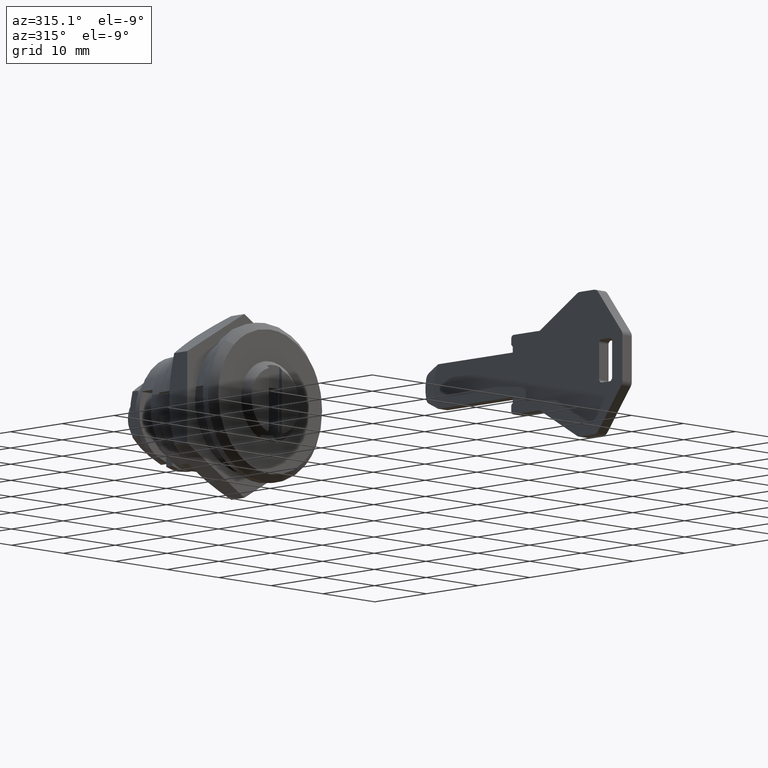
[diagram: clean part render]
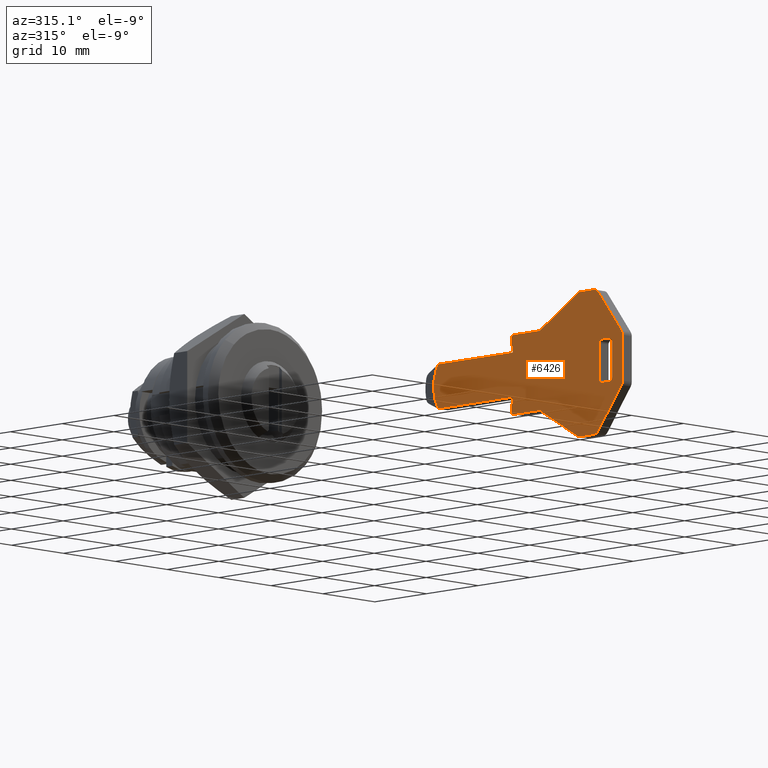
[diagram: same view with one face highlighted and labeled with its STEP entity id]
A machine part, auxiliary view. The second image highlights one B-rep face of the part: STEP entity #6426.
In plain terms, the highlighted face is a freeform B-spline surface patch.
Its self-contained STEP definition (entity closure, byte-faithful):
#6012=CARTESIAN_POINT('',(-33.377038325660592,0.899996709018056,1.350000000000000));
#6013=VERTEX_POINT('',#6012);
#6034=CARTESIAN_POINT('',(-33.377038325660649,0.899996709018053,-4.800000000000080));
#6035=VERTEX_POINT('',#6034);
#6125=CARTESIAN_POINT('',(-33.377038325660649,0.899996709018053,-4.800000000000080));
#6126=CARTESIAN_POINT('',(-33.152906285406068,0.899996709018054,-4.424616922456002));
#6127=CARTESIAN_POINT('',(-32.829506566871522,0.899996709018052,-3.716870572396846));
#6128=CARTESIAN_POINT('',(-32.538190007197350,0.899996709018054,-2.502577497537765));
#6129=CARTESIAN_POINT('',(-32.494807317380328,0.899996709018058,-1.216457287095673));
#6130=CARTESIAN_POINT('',(-32.773217067089277,0.899996709018047,0.143797104055706));
#6131=CARTESIAN_POINT('',(-33.152907588685963,0.899996709018066,0.974615492622894));
#6132=CARTESIAN_POINT('',(-33.377038325660592,0.899996709018056,1.350000000000000));
#6133=B_SPLINE_CURVE_WITH_KNOTS('',3,(#6125,#6126,#6127,#6128,#6129,#6130,#6131,#6132),.UNSPECIFIED.,.F.,.U.,(4,1,1,1,1,4),(0.000000040810688,1.311612525735175,2.320563323781189,3.733041168151737,5.145580433383238,6.457193163281999),.UNSPECIFIED.);
#6134=EDGE_CURVE('',#6035,#6013,#6133,.T.);
#6141=CARTESIAN_POINT('',(-70.852373160092981,0.900000000000000,9.273999585744747));
#6142=CARTESIAN_POINT('',(-30.706010978148331,0.900000000000000,9.273999585744747));
#6143=CARTESIAN_POINT('',(-70.852373160092981,0.900000000000000,-12.724000479814579));
#6144=CARTESIAN_POINT('',(-30.706010978148331,0.900000000000000,-12.724000479814579));
#6145=B_SPLINE_SURFACE_WITH_KNOTS('',1,1,((#6141,#6143),(#6142,#6144)),.UNSPECIFIED.,.F.,.F.,.U.,(2,2),(2,2),(0.0,40.146362181944653),(0.0,21.998000065559321),.UNSPECIFIED.);
#6146=CARTESIAN_POINT('',(-47.829200000000000,0.900000000000012,1.350000000000000));
#6147=VERTEX_POINT('',#6146);
#6148=CARTESIAN_POINT('',(-33.377038325660592,0.899996709018056,1.350000000000000));
#6149=CARTESIAN_POINT('',(-47.829200000000000,0.900000000000012,1.350000000000000));
#6150=QUASI_UNIFORM_CURVE('',1,(#6148,#6149),.UNSPECIFIED.,.F.,.U.);
#6151=EDGE_CURVE('',#6013,#6147,#6150,.T.);
#6152=ORIENTED_EDGE('',*,*,#6151,.F.);
#6153=ORIENTED_EDGE('',*,*,#6134,.F.);
#6154=CARTESIAN_POINT('',(-47.829200000000000,0.900000000000012,-4.800000000000080));
#6155=VERTEX_POINT('',#6154);
#6156=CARTESIAN_POINT('',(-47.829200000000000,0.900000000000012,-4.800000000000080));
#6157=CARTESIAN_POINT('',(-33.377038325660649,0.899996709018053,-4.800000000000080));
#6158=QUASI_UNIFORM_CURVE('',1,(#6156,#6157),.UNSPECIFIED.,.F.,.U.);
#6159=EDGE_CURVE('',#6155,#6035,#6158,.T.);
#6160=ORIENTED_EDGE('',*,*,#6159,.F.);
#6161=CARTESIAN_POINT('',(-47.829200000000000,0.900000000000012,-5.600000000000000));
#6162=VERTEX_POINT('',#6161);
#6163=CARTESIAN_POINT('',(-47.829200000000000,0.900000000000012,-5.600000000000000));
#6164=CARTESIAN_POINT('',(-47.829200000000000,0.900000000000012,-4.800000000000080));
#6165=QUASI_UNIFORM_CURVE('',1,(#6163,#6164),.UNSPECIFIED.,.F.,.U.);
#6166=EDGE_CURVE('',#6162,#6155,#6165,.T.);
#6167=ORIENTED_EDGE('',*,*,#6166,.F.);
#6168=CARTESIAN_POINT('',(-47.529200000000003,0.900000000000012,-5.900000000000000));
#6169=VERTEX_POINT('',#6168);
#6170=CARTESIAN_POINT('',(-47.529200000000003,0.900000000000012,-5.900000000000000));
#6171=CARTESIAN_POINT('',(-47.829200000000000,0.900000000000012,-5.600000000000000));
#6172=QUASI_UNIFORM_CURVE('',1,(#6170,#6171),.UNSPECIFIED.,.F.,.U.);
#6173=EDGE_CURVE('',#6169,#6162,#6172,.T.);
#6174=ORIENTED_EDGE('',*,*,#6173,.F.);
#6175=CARTESIAN_POINT('',(-47.529200000000003,0.900000000000012,-6.725000000000000));
#6176=VERTEX_POINT('',#6175);
#6177=CARTESIAN_POINT('',(-47.529200000000003,0.900000000000012,-6.725000000000000));
#6178=CARTESIAN_POINT('',(-47.529200000000003,0.900000000000012,-5.900000000000000));
#6179=QUASI_UNIFORM_CURVE('',1,(#6177,#6178),.UNSPECIFIED.,.F.,.U.);
#6180=EDGE_CURVE('',#6176,#6169,#6179,.T.);
#6181=ORIENTED_EDGE('',*,*,#6180,.F.);
#6182=CARTESIAN_POINT('',(-48.029200000000003,0.900000000000012,-7.225000000000000));
#6183=VERTEX_POINT('',#6182);
#6184=CARTESIAN_POINT('',(-48.029200000000003,0.900000000000012,-7.225000000000000));
#6185=CARTESIAN_POINT('',(-47.947348378245202,0.900000000000013,-7.225159022870324));
#6186=CARTESIAN_POINT('',(-47.824802085753468,0.900000000000011,-7.194195560144747));
#6187=CARTESIAN_POINT('',(-47.669769607722429,0.900000000000013,-7.084990774377641));
#6188=CARTESIAN_POINT('',(-47.560490324399822,0.900000000000011,-6.937634895600256));
#6189=CARTESIAN_POINT('',(-47.529087500856960,0.900000000000014,-6.798652743611017));
#6190=CARTESIAN_POINT('',(-47.529200000000003,0.900000000000012,-6.725000000000000));
#6191=B_SPLINE_CURVE_WITH_KNOTS('',3,(#6184,#6185,#6186,#6187,#6188,#6189,#6190),.UNSPECIFIED.,.F.,.U.,(4,1,1,1,4),(0.000000378756345,0.245466615867873,0.368210764460239,0.564556063267420,0.785476941727156),.UNSPECIFIED.);
#6192=EDGE_CURVE('',#6183,#6176,#6191,.T.);
#6193=ORIENTED_EDGE('',*,*,#6192,.F.);
#6194=CARTESIAN_POINT('',(-53.029200000000003,0.900000000000012,-7.225000000000000));
#6195=VERTEX_POINT('',#6194);
#6196=CARTESIAN_POINT('',(-53.029200000000003,0.900000000000012,-7.225000000000000));
#6197=CARTESIAN_POINT('',(-48.029200000000003,0.900000000000012,-7.225000000000000));
#6198=QUASI_UNIFORM_CURVE('',1,(#6196,#6197),.UNSPECIFIED.,.F.,.U.);
#6199=EDGE_CURVE('',#6195,#6183,#6198,.T.);
#6200=ORIENTED_EDGE('',*,*,#6199,.F.);
#6201=CARTESIAN_POINT('',(-60.291699955738203,0.900000000000012,-11.582999973439920));
#6202=VERTEX_POINT('',#6201);
#6203=CARTESIAN_POINT('',(-60.291699955738203,0.900000000000012,-11.582999973439920));
#6204=CARTESIAN_POINT('',(-53.029200000000003,0.900000000000012,-7.225000000000000));
#6205=QUASI_UNIFORM_CURVE('',1,(#6203,#6204),.UNSPECIFIED.,.F.,.U.);
#6206=EDGE_CURVE('',#6202,#6195,#6205,.T.);
#6207=ORIENTED_EDGE('',*,*,#6206,.F.);
#6208=CARTESIAN_POINT('',(-60.806100000000001,0.900000000000012,-11.725000000000000));
#6209=VERTEX_POINT('',#6208);
#6210=CARTESIAN_POINT('',(-60.806100000000001,0.900000000000012,-11.725000000000000));
#6211=CARTESIAN_POINT('',(-60.625941345514960,0.900000000000013,-11.725661369077320));
#6212=CARTESIAN_POINT('',(-60.446036689451340,0.900000000000012,-11.675887335064850));
#6213=CARTESIAN_POINT('',(-60.291699955738203,0.900000000000012,-11.582999973439920));
#6214=B_SPLINE_CURVE_WITH_KNOTS('',3,(#6210,#6211,#6212,#6213),.UNSPECIFIED.,.F.,.U.,(4,4),(0.000000044724348,0.540260153120440),.UNSPECIFIED.);
#6215=EDGE_CURVE('',#6209,#6202,#6214,.T.);
#6216=ORIENTED_EDGE('',*,*,#6215,.F.);
#6217=CARTESIAN_POINT('',(-63.536800000000007,0.900000000000012,-11.725000000000160));
#6218=VERTEX_POINT('',#6217);
#6219=CARTESIAN_POINT('',(-63.536800000000007,0.900000000000012,-11.725000000000160));
#6220=CARTESIAN_POINT('',(-60.806100000000001,0.900000000000012,-11.725000000000000));
#6221=QUASI_UNIFORM_CURVE('',1,(#6219,#6220),.UNSPECIFIED.,.F.,.U.);
#6222=EDGE_CURVE('',#6218,#6209,#6221,.T.);
#6223=ORIENTED_EDGE('',*,*,#6222,.F.);
#6224=CARTESIAN_POINT('',(-64.329400009085390,0.900000000000012,-11.334999988189161));
#6225=VERTEX_POINT('',#6224);
#6226=CARTESIAN_POINT('',(-64.329400009085390,0.900000000000012,-11.334999988189161));
#6227=CARTESIAN_POINT('',(-64.230817014421135,0.900000000000013,-11.463644188985180));
#6228=CARTESIAN_POINT('',(-63.984670356665767,0.900000000000011,-11.658652239598030));
#6229=CARTESIAN_POINT('',(-63.679800325578121,0.900000000000012,-11.725266643935900));
#6230=CARTESIAN_POINT('',(-63.536800000000007,0.900000000000012,-11.725000000000160));
#6231=B_SPLINE_CURVE_WITH_KNOTS('',3,(#6226,#6227,#6228,#6229,#6230),.UNSPECIFIED.,.F.,.U.,(4,1,4),(0.000000120061901,0.486077434635108,0.915015808070729),.UNSPECIFIED.);
#6232=EDGE_CURVE('',#6225,#6218,#6231,.T.);
#6233=ORIENTED_EDGE('',*,*,#6232,.F.);
#6234=CARTESIAN_POINT('',(-68.821799999999996,0.900000000000012,-5.495000000000080));
#6235=VERTEX_POINT('',#6234);
#6236=CARTESIAN_POINT('',(-68.821799999999996,0.900000000000012,-5.495000000000080));
#6237=CARTESIAN_POINT('',(-64.329400009085390,0.900000000000012,-11.334999988189161));
#6238=QUASI_UNIFORM_CURVE('',1,(#6236,#6237),.UNSPECIFIED.,.F.,.U.);
#6239=EDGE_CURVE('',#6235,#6225,#6238,.T.);
#6240=ORIENTED_EDGE('',*,*,#6239,.F.);
#6241=CARTESIAN_POINT('',(-69.029200000000003,0.900000000000012,-4.885000000000090));
#6242=VERTEX_POINT('',#6241);
#6243=CARTESIAN_POINT('',(-69.029200000000003,0.900000000000012,-4.885000000000090));
#6244=CARTESIAN_POINT('',(-69.029344328384838,0.900000000000013,-5.008017425576838));
#6245=CARTESIAN_POINT('',(-68.988376903731421,0.900000000000010,-5.226591401505659));
#6246=CARTESIAN_POINT('',(-68.880162636342604,0.900000000000014,-5.419192868605842));
#6247=CARTESIAN_POINT('',(-68.821799999999996,0.900000000000012,-5.495000000000080));
#6248=B_SPLINE_CURVE_WITH_KNOTS('',3,(#6243,#6244,#6245,#6246,#6247),.UNSPECIFIED.,.F.,.U.,(4,1,4),(0.000000034420036,0.369020570195113,0.656036812134061),.UNSPECIFIED.);
#6249=EDGE_CURVE('',#6242,#6235,#6248,.T.);
#6250=ORIENTED_EDGE('',*,*,#6249,.F.);
#6251=CARTESIAN_POINT('',(-69.029200000000003,0.900000000000012,1.435000000000016));
#6252=VERTEX_POINT('',#6251);
#6253=CARTESIAN_POINT('',(-69.029200000000003,0.900000000000012,1.435000000000016));
#6254=CARTESIAN_POINT('',(-69.029200000000003,0.900000000000012,-4.885000000000090));
#6255=QUASI_UNIFORM_CURVE('',1,(#6253,#6254),.UNSPECIFIED.,.F.,.U.);
#6256=EDGE_CURVE('',#6252,#6242,#6255,.T.);
#6257=ORIENTED_EDGE('',*,*,#6256,.F.);
#6258=CARTESIAN_POINT('',(-68.839844749133903,0.900000000000012,2.020538291405075));
#6259=VERTEX_POINT('',#6258);
#6260=CARTESIAN_POINT('',(-68.839844749133903,0.900000000000012,2.020538291405075));
#6261=CARTESIAN_POINT('',(-68.908603222968637,0.900000000000013,1.925505307822197));
#6262=CARTESIAN_POINT('',(-69.000470886050209,0.900000000000010,1.734727633931907));
#6263=CARTESIAN_POINT('',(-69.029227402619497,0.900000000000013,1.526229735561985));
#6264=CARTESIAN_POINT('',(-69.029200000000003,0.900000000000012,1.435000000000016));
#6265=B_SPLINE_CURVE_WITH_KNOTS('',3,(#6260,#6261,#6262,#6263,#6264),.UNSPECIFIED.,.F.,.U.,(4,1,4),(0.000000054737451,0.351883973345525,0.625583741767919),.UNSPECIFIED.);
#6266=EDGE_CURVE('',#6259,#6252,#6265,.T.);
#6267=ORIENTED_EDGE('',*,*,#6266,.F.);
#6268=CARTESIAN_POINT('',(-64.329400047204601,0.900000000000012,7.884999938624711));
#6269=VERTEX_POINT('',#6268);
#6270=CARTESIAN_POINT('',(-64.329400047204601,0.900000000000012,7.884999938624711));
#6271=CARTESIAN_POINT('',(-68.839844749133903,0.900000000000012,2.020538291405075));
#6272=QUASI_UNIFORM_CURVE('',1,(#6270,#6271),.UNSPECIFIED.,.F.,.U.);
#6273=EDGE_CURVE('',#6269,#6259,#6272,.T.);
#6274=ORIENTED_EDGE('',*,*,#6273,.F.);
#6275=CARTESIAN_POINT('',(-63.536800000000007,0.900000000000012,8.274999999999999));
#6276=VERTEX_POINT('',#6275);
#6277=CARTESIAN_POINT('',(-63.536800000000007,0.900000000000012,8.274999999999999));
#6278=CARTESIAN_POINT('',(-63.670252051023077,0.900000000000012,8.275218665045104));
#6279=CARTESIAN_POINT('',(-63.975206675919772,0.900000000000012,8.213265140419839));
#6280=CARTESIAN_POINT('',(-64.225077251292134,0.900000000000013,8.021310965326384));
#6281=CARTESIAN_POINT('',(-64.329400047204601,0.900000000000012,7.884999938624711));
#6282=B_SPLINE_CURVE_WITH_KNOTS('',3,(#6277,#6278,#6279,#6280,#6281),.UNSPECIFIED.,.F.,.U.,(4,1,4),(0.000000120151753,0.400341080771767,0.915027601937548),.UNSPECIFIED.);
#6283=EDGE_CURVE('',#6276,#6269,#6282,.T.);
#6284=ORIENTED_EDGE('',*,*,#6283,.F.);
#6285=CARTESIAN_POINT('',(-60.806100000000001,0.900000000000012,8.274999999999999));
#6286=VERTEX_POINT('',#6285);
#6287=CARTESIAN_POINT('',(-60.806100000000001,0.900000000000012,8.274999999999999));
#6288=CARTESIAN_POINT('',(-63.536800000000007,0.900000000000012,8.274999999999999));
#6289=QUASI_UNIFORM_CURVE('',1,(#6287,#6288),.UNSPECIFIED.,.F.,.U.);
#6290=EDGE_CURVE('',#6286,#6276,#6289,.T.);
#6291=ORIENTED_EDGE('',*,*,#6290,.F.);
#6292=CARTESIAN_POINT('',(-60.265547876998099,0.900000000000012,8.116310526689340));
#6293=VERTEX_POINT('',#6292);
#6294=CARTESIAN_POINT('',(-60.265547876998099,0.900000000000012,8.116310526689340));
#6295=CARTESIAN_POINT('',(-60.425569254137500,0.900000000000012,8.219621950942406));
#6296=CARTESIAN_POINT('',(-60.615662822163422,0.900000000000012,8.275291947905297));
#6297=CARTESIAN_POINT('',(-60.806100000000001,0.900000000000012,8.274999999999999));
#6298=B_SPLINE_CURVE_WITH_KNOTS('',3,(#6294,#6295,#6296,#6297),.UNSPECIFIED.,.F.,.U.,(4,4),(0.000000034768193,0.571123536007726),.UNSPECIFIED.);
#6299=EDGE_CURVE('',#6293,#6286,#6298,.T.);
#6300=ORIENTED_EDGE('',*,*,#6299,.F.);
#6301=CARTESIAN_POINT('',(-53.029200000000003,0.900000000000012,3.775000000000000));
#6302=VERTEX_POINT('',#6301);
#6303=CARTESIAN_POINT('',(-53.029200000000003,0.900000000000012,3.775000000000000));
#6304=CARTESIAN_POINT('',(-60.265547876998099,0.900000000000012,8.116310526689340));
#6305=QUASI_UNIFORM_CURVE('',1,(#6303,#6304),.UNSPECIFIED.,.F.,.U.);
#6306=EDGE_CURVE('',#6302,#6293,#6305,.T.);
#6307=ORIENTED_EDGE('',*,*,#6306,.F.);
#6308=CARTESIAN_POINT('',(-48.029200000000003,0.900000000000012,3.775000000000000));
#6309=VERTEX_POINT('',#6308);
#6310=CARTESIAN_POINT('',(-48.029200000000003,0.900000000000012,3.775000000000000));
#6311=CARTESIAN_POINT('',(-53.029200000000003,0.900000000000012,3.775000000000000));
#6312=QUASI_UNIFORM_CURVE('',1,(#6310,#6311),.UNSPECIFIED.,.F.,.U.);
#6313=EDGE_CURVE('',#6309,#6302,#6312,.T.);
#6314=ORIENTED_EDGE('',*,*,#6313,.F.);
#6315=CARTESIAN_POINT('',(-47.529200000000003,0.900000000000012,3.275000000000000));
#6316=VERTEX_POINT('',#6315);
#6317=CARTESIAN_POINT('',(-47.529200000000003,0.900000000000012,3.275000000000000));
#6318=CARTESIAN_POINT('',(-47.529043584060737,0.900000000000012,3.356849959860222));
#6319=CARTESIAN_POINT('',(-47.560001471217163,0.900000000000012,3.479398876038724));
#6320=CARTESIAN_POINT('',(-47.669210471618470,0.900000000000012,3.634430003952036));
#6321=CARTESIAN_POINT('',(-47.816564684132643,0.900000000000012,3.743709806676057));
#6322=CARTESIAN_POINT('',(-47.955547327944458,0.900000000000014,3.775112477421635));
#6323=CARTESIAN_POINT('',(-48.029200000000003,0.900000000000012,3.775000000000000));
#6324=B_SPLINE_CURVE_WITH_KNOTS('',3,(#6317,#6318,#6319,#6320,#6321,#6322,#6323),.UNSPECIFIED.,.F.,.U.,(4,1,1,1,4),(0.000000378754695,0.245466615866304,0.368210764458864,0.564556063266685,0.785476941727197),.UNSPECIFIED.);
#6325=EDGE_CURVE('',#6316,#6309,#6324,.T.);
#6326=ORIENTED_EDGE('',*,*,#6325,.F.);
#6327=CARTESIAN_POINT('',(-47.529200000000003,0.900000000000012,2.450000000000000));
#6328=VERTEX_POINT('',#6327);
#6329=CARTESIAN_POINT('',(-47.529200000000003,0.900000000000012,2.450000000000000));
#6330=CARTESIAN_POINT('',(-47.529200000000003,0.900000000000012,3.275000000000000));
#6331=QUASI_UNIFORM_CURVE('',1,(#6329,#6330),.UNSPECIFIED.,.F.,.U.);
#6332=EDGE_CURVE('',#6328,#6316,#6331,.T.);
#6333=ORIENTED_EDGE('',*,*,#6332,.F.);
#6334=CARTESIAN_POINT('',(-47.829200000000000,0.900000000000012,2.150000000000000));
#6335=VERTEX_POINT('',#6334);
#6336=CARTESIAN_POINT('',(-47.829200000000000,0.900000000000012,2.150000000000000));
#6337=CARTESIAN_POINT('',(-47.529200000000003,0.900000000000012,2.450000000000000));
#6338=QUASI_UNIFORM_CURVE('',1,(#6336,#6337),.UNSPECIFIED.,.F.,.U.);
#6339=EDGE_CURVE('',#6335,#6328,#6338,.T.);
#6340=ORIENTED_EDGE('',*,*,#6339,.F.);
#6341=CARTESIAN_POINT('',(-47.829200000000000,0.900000000000012,1.350000000000000));
#6342=CARTESIAN_POINT('',(-47.829200000000000,0.900000000000012,2.150000000000000));
#6343=QUASI_UNIFORM_CURVE('',1,(#6341,#6342),.UNSPECIFIED.,.F.,.U.);
#6344=EDGE_CURVE('',#6147,#6335,#6343,.T.);
#6345=ORIENTED_EDGE('',*,*,#6344,.F.);
#6346=EDGE_LOOP('',(#6152,#6153,#6160,#6167,#6174,#6181,#6193,#6200,#6207,#6216,#6223,#6233,#6240,#6250,#6257,#6267,#6274,#6284,#6291,#6300,#6307,#6314,#6326,#6333,#6340,#6345));
#6347=FACE_OUTER_BOUND('',#6346,.T.);
#6348=CARTESIAN_POINT('',(-64.529199999999989,0.900000000000012,0.775000000000020));
#6349=VERTEX_POINT('',#6348);
#6350=CARTESIAN_POINT('',(-65.029199999999989,0.900000000000012,1.275000000000020));
#6351=VERTEX_POINT('',#6350);
#6352=CARTESIAN_POINT('',(-64.529199999999989,0.900000000000012,0.775000000000020));
#6353=CARTESIAN_POINT('',(-64.529040551449384,0.900000000000012,0.856851753201348));
#6354=CARTESIAN_POINT('',(-64.560004130086526,0.900000000000012,0.979400240704490));
#6355=CARTESIAN_POINT('',(-64.659743615419856,0.900000000000012,1.120908488291919));
#6356=CARTESIAN_POINT('',(-64.800354062808211,0.900000000000013,1.236395001889831));
#6357=CARTESIAN_POINT('',(-64.939136865681647,0.900000000000012,1.275266826704393));
#6358=CARTESIAN_POINT('',(-65.029199999999989,0.900000000000012,1.275000000000020));
#6359=B_SPLINE_CURVE_WITH_KNOTS('',3,(#6352,#6353,#6354,#6355,#6356,#6357,#6358),.UNSPECIFIED.,.F.,.U.,(4,1,1,1,4),(0.000000378752525,0.245466615865067,0.368210764458137,0.515464349929587,0.785476941727202),.UNSPECIFIED.);
#6360=EDGE_CURVE('',#6349,#6351,#6359,.T.);
#6361=ORIENTED_EDGE('',*,*,#6360,.T.);
#6362=CARTESIAN_POINT('',(-66.529200000000003,0.900000000000012,1.275000000000020));
#6363=VERTEX_POINT('',#6362);
#6364=CARTESIAN_POINT('',(-65.029199999999989,0.900000000000012,1.275000000000020));
#6365=CARTESIAN_POINT('',(-66.529200000000003,0.900000000000012,1.275000000000020));
#6366=QUASI_UNIFORM_CURVE('',1,(#6364,#6365),.UNSPECIFIED.,.F.,.U.);
#6367=EDGE_CURVE('',#6351,#6363,#6366,.T.);
#6368=ORIENTED_EDGE('',*,*,#6367,.T.);
#6369=CARTESIAN_POINT('',(-67.029200000000003,0.900000000000012,0.775000000000020));
#6370=VERTEX_POINT('',#6369);
#6371=CARTESIAN_POINT('',(-66.529200000000003,0.900000000000012,1.275000000000020));
#6372=CARTESIAN_POINT('',(-66.611049113764082,0.900000000000013,1.275162732288272));
#6373=CARTESIAN_POINT('',(-66.749936611399406,0.900000000000011,1.240070402749249));
#6374=CARTESIAN_POINT('',(-66.913613033931696,0.900000000000013,1.112367871034588));
#6375=CARTESIAN_POINT('',(-67.007918550687180,0.900000000000008,0.954985581901014));
#6376=CARTESIAN_POINT('',(-67.029229596404534,0.900000000000015,0.832268673270701));
#6377=CARTESIAN_POINT('',(-67.029200000000003,0.900000000000012,0.775000000000020));
#6378=B_SPLINE_CURVE_WITH_KNOTS('',3,(#6371,#6372,#6373,#6374,#6375,#6376,#6377),.UNSPECIFIED.,.F.,.U.,(4,1,1,1,4),(0.000000378751354,0.245466615864317,0.417262450504193,0.613659777039460,0.785476941727251),.UNSPECIFIED.);
#6379=EDGE_CURVE('',#6363,#6370,#6378,.T.);
#6380=ORIENTED_EDGE('',*,*,#6379,.T.);
#6381=CARTESIAN_POINT('',(-67.029200000000003,0.900000000000012,-4.225000000000000));
#6382=VERTEX_POINT('',#6381);
#6383=CARTESIAN_POINT('',(-67.029200000000003,0.900000000000012,0.775000000000020));
#6384=CARTESIAN_POINT('',(-67.029200000000003,0.900000000000012,-4.225000000000000));
#6385=QUASI_UNIFORM_CURVE('',1,(#6383,#6384),.UNSPECIFIED.,.F.,.U.);
#6386=EDGE_CURVE('',#6370,#6382,#6385,.T.);
#6387=ORIENTED_EDGE('',*,*,#6386,.T.);
#6388=CARTESIAN_POINT('',(-66.529200000000003,0.900000000000012,-4.725000000000000));
#6389=VERTEX_POINT('',#6388);
#6390=CARTESIAN_POINT('',(-67.029200000000003,0.900000000000012,-4.225000000000000));
#6391=CARTESIAN_POINT('',(-67.029358656274624,0.900000000000013,-4.306844794486773));
#6392=CARTESIAN_POINT('',(-66.994284299022851,0.900000000000012,-4.445752058656367));
#6393=CARTESIAN_POINT('',(-66.876760692660994,0.900000000000012,-4.596281834769509));
#6394=CARTESIAN_POINT('',(-66.725465818627910,0.900000000000012,-4.697368691854591));
#6395=CARTESIAN_POINT('',(-66.602858023706972,0.900000000000012,-4.725113948765412));
#6396=CARTESIAN_POINT('',(-66.529200000000003,0.900000000000012,-4.725000000000000));
#6397=B_SPLINE_CURVE_WITH_KNOTS('',3,(#6390,#6391,#6392,#6393,#6394,#6395,#6396),.UNSPECIFIED.,.F.,.U.,(4,1,1,1,4),(0.000000378758152,0.245466615868381,0.417262450506461,0.564556063267235,0.785476941727190),.UNSPECIFIED.);
#6398=EDGE_CURVE('',#6382,#6389,#6397,.T.);
#6399=ORIENTED_EDGE('',*,*,#6398,.T.);
#6400=CARTESIAN_POINT('',(-65.029199999999989,0.900000000000012,-4.725000000000000));
#6401=VERTEX_POINT('',#6400);
#6402=CARTESIAN_POINT('',(-66.529200000000003,0.900000000000012,-4.725000000000000));
#6403=CARTESIAN_POINT('',(-65.029199999999989,0.900000000000012,-4.725000000000000));
#6404=QUASI_UNIFORM_CURVE('',1,(#6402,#6403),.UNSPECIFIED.,.F.,.U.);
#6405=EDGE_CURVE('',#6389,#6401,#6404,.T.);
#6406=ORIENTED_EDGE('',*,*,#6405,.T.);
#6407=CARTESIAN_POINT('',(-64.529199999999989,0.900000000000012,-4.225000000000000));
#6408=VERTEX_POINT('',#6407);
#6409=CARTESIAN_POINT('',(-65.029199999999989,0.900000000000012,-4.725000000000000));
#6410=CARTESIAN_POINT('',(-64.947352377279316,0.900000000000012,-4.725162298127462));
#6411=CARTESIAN_POINT('',(-64.808462136726348,0.900000000000012,-4.690071126310268));
#6412=CARTESIAN_POINT('',(-64.644788787122579,0.900000000000012,-4.562366729861340));
#6413=CARTESIAN_POINT('',(-64.550476858303952,0.900000000000012,-4.404990627716376));
#6414=CARTESIAN_POINT('',(-64.529174830659358,0.900000000000012,-4.282263384184427));
#6415=CARTESIAN_POINT('',(-64.529199999999989,0.900000000000012,-4.225000000000000));
#6416=B_SPLINE_CURVE_WITH_KNOTS('',3,(#6409,#6410,#6411,#6412,#6413,#6414,#6415),.UNSPECIFIED.,.F.,.U.,(4,1,1,1,4),(0.000000378754297,0.245466615866465,0.417262450505471,0.613659777040022,0.785476941727196),.UNSPECIFIED.);
#6417=EDGE_CURVE('',#6401,#6408,#6416,.T.);
#6418=ORIENTED_EDGE('',*,*,#6417,.T.);
#6419=CARTESIAN_POINT('',(-64.529199999999989,0.900000000000012,-4.225000000000000));
#6420=CARTESIAN_POINT('',(-64.529199999999989,0.900000000000012,0.775000000000020));
#6421=QUASI_UNIFORM_CURVE('',1,(#6419,#6420),.UNSPECIFIED.,.F.,.U.);
#6422=EDGE_CURVE('',#6408,#6349,#6421,.T.);
#6423=ORIENTED_EDGE('',*,*,#6422,.T.);
#6424=EDGE_LOOP('',(#6361,#6368,#6380,#6387,#6399,#6406,#6418,#6423));
#6425=FACE_BOUND('',#6424,.T.);
#6426=ADVANCED_FACE('',(#6347,#6425),#6145,.T.);